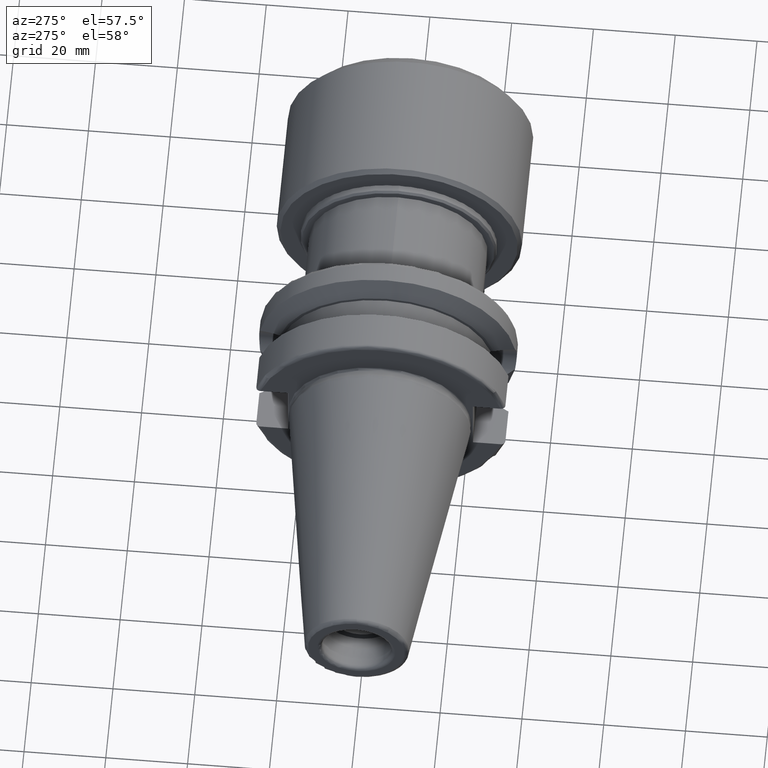
[diagram: clean part render]
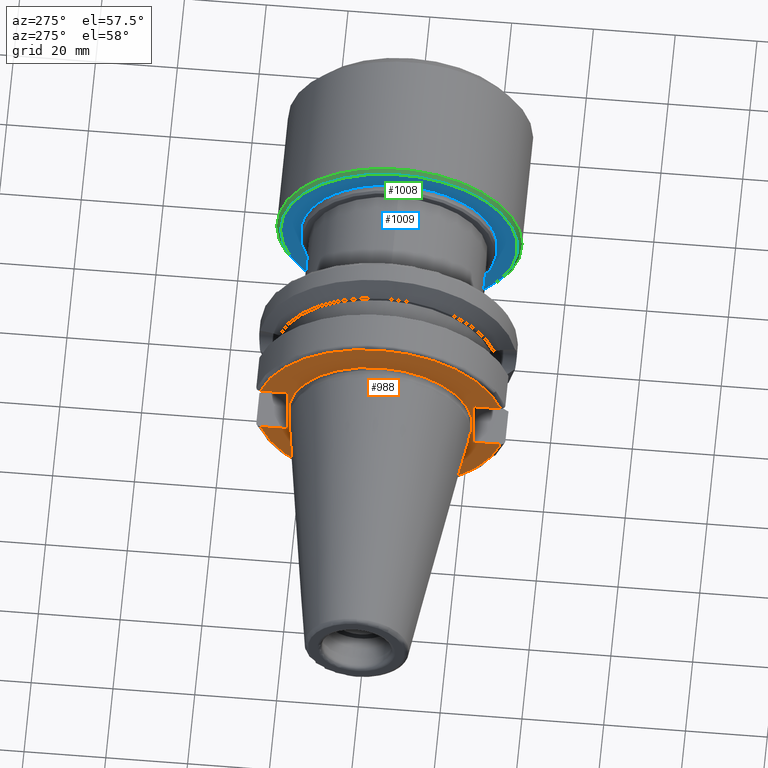
[diagram: same view with three faces highlighted in distinct colors, each labeled with its STEP entity id]
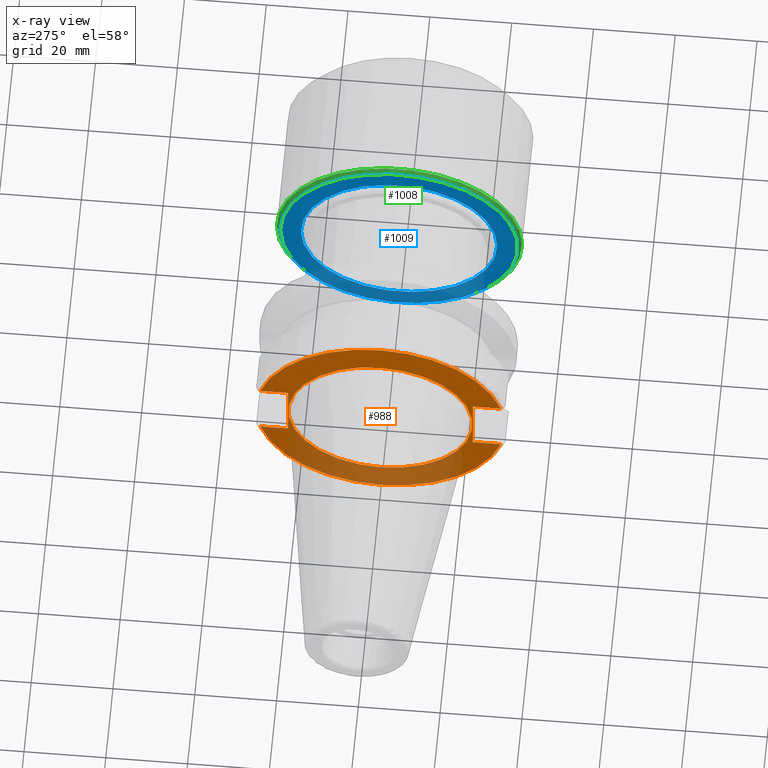
[diagram: x-ray of the same camera — body ghosted, the three highlighted faces saturated]
A machine part, auxiliary view with three faces highlighted in distinct colors.
The next image is the same camera in x-ray (body ghosted, the three faces saturated) — at least one of them is partly hidden behind the body in this view.
Their STEP definitions:

[orange] entity #988 — the highlighted planar face has unit normal (-1, 0, 0).
#66=FACE_BOUND('',#215,.T.);
#85=PLANE('',#1170);
#149=FACE_OUTER_BOUND('',#214,.T.);
#214=EDGE_LOOP('',(#844,#845,#846,#847,#848,#849,#850,#851));
#215=EDGE_LOOP('',(#852));
#259=LINE('',#1692,#311);
#263=LINE('',#1700,#315);
#266=LINE('',#1720,#318);
#277=LINE('',#1820,#329);
#280=LINE('',#1841,#332);
#282=LINE('',#1844,#334);
#311=VECTOR('',#1324,10.);
#315=VECTOR('',#1330,10.);
#318=VECTOR('',#1335,10.);
#329=VECTOR('',#1390,10.);
#332=VECTOR('',#1395,10.);
#334=VECTOR('',#1399,10.);
#380=CIRCLE('',#1147,30.5);
#392=CIRCLE('',#1169,22.5);
#393=CIRCLE('',#1171,30.5);
#454=VERTEX_POINT('',#1680);
#455=VERTEX_POINT('',#1691);
#457=VERTEX_POINT('',#1697);
#458=VERTEX_POINT('',#1699);
#473=VERTEX_POINT('',#1780);
#480=VERTEX_POINT('',#1817);
#481=VERTEX_POINT('',#1819);
#485=VERTEX_POINT('',#1840);
#493=VERTEX_POINT('',#1870);
#559=EDGE_CURVE('',#455,#454,#259,.T.);
#563=EDGE_CURVE('',#458,#457,#263,.T.);
#568=EDGE_CURVE('',#457,#455,#266,.T.);
#588=EDGE_CURVE('',#458,#473,#380,.T.);
#598=EDGE_CURVE('',#481,#480,#277,.T.);
#603=EDGE_CURVE('',#485,#473,#280,.T.);
#605=EDGE_CURVE('',#480,#485,#282,.T.);
#619=EDGE_CURVE('',#493,#493,#392,.T.);
#620=EDGE_CURVE('',#481,#454,#393,.T.);
#844=ORIENTED_EDGE('',*,*,#559,.T.);
#845=ORIENTED_EDGE('',*,*,#620,.F.);
#846=ORIENTED_EDGE('',*,*,#598,.T.);
#847=ORIENTED_EDGE('',*,*,#605,.T.);
#848=ORIENTED_EDGE('',*,*,#603,.T.);
#849=ORIENTED_EDGE('',*,*,#588,.F.);
#850=ORIENTED_EDGE('',*,*,#563,.T.);
#851=ORIENTED_EDGE('',*,*,#568,.T.);
#852=ORIENTED_EDGE('',*,*,#619,.T.);
#988=ADVANCED_FACE('',(#149,#66),#85,.T.);
#1147=AXIS2_PLACEMENT_3D('',#1781,#1377,#1378);
#1169=AXIS2_PLACEMENT_3D('',#1872,#1435,#1436);
#1170=AXIS2_PLACEMENT_3D('',#1873,#1437,#1438);
#1171=AXIS2_PLACEMENT_3D('',#1874,#1439,#1440);
#1324=DIRECTION('',(0.,-1.,0.));
#1330=DIRECTION('',(0.,1.,0.));
#1335=DIRECTION('',(0.,0.,1.));
#1377=DIRECTION('center_axis',(1.,0.,0.));
#1378=DIRECTION('ref_axis',(0.,0.,-1.));
#1390=DIRECTION('',(0.,-1.,0.));
#1395=DIRECTION('',(0.,1.,0.));
#1399=DIRECTION('',(0.,0.,-1.));
#1435=DIRECTION('center_axis',(1.,0.,0.));
#1436=DIRECTION('ref_axis',(0.,0.,-1.));
#1437=DIRECTION('center_axis',(-1.,0.,0.));
#1438=DIRECTION('ref_axis',(0.,0.,1.));
#1439=DIRECTION('center_axis',(1.,0.,0.));
#1440=DIRECTION('ref_axis',(0.,0.,-1.));
#1680=CARTESIAN_POINT('',(1.99999999999999,-29.4184890842477,8.05));
#1691=CARTESIAN_POINT('',(1.99999999999999,-22.6,8.05));
#1692=CARTESIAN_POINT('',(1.99999999999999,3.95,8.05));
#1697=CARTESIAN_POINT('',(1.99999999999999,-22.6,-8.05));
#1699=CARTESIAN_POINT('',(1.99999999999999,-29.4184890842477,-8.05));
#1700=CARTESIAN_POINT('',(1.99999999999999,3.95,-8.05));
#1720=CARTESIAN_POINT('',(1.99999999999999,-22.6,0.));
#1780=CARTESIAN_POINT('',(1.99999999999999,29.4184890842477,-8.05));
#1781=CARTESIAN_POINT('Origin',(1.99999999999999,0.,0.));
#1817=CARTESIAN_POINT('',(1.99999999999999,22.6,8.05));
#1819=CARTESIAN_POINT('',(1.99999999999999,29.4184890842477,8.05));
#1820=CARTESIAN_POINT('',(1.99999999999999,26.55,8.05));
#1840=CARTESIAN_POINT('',(1.99999999999999,22.6,-8.05));
#1841=CARTESIAN_POINT('',(1.99999999999999,26.55,-8.05));
#1844=CARTESIAN_POINT('',(1.99999999999999,22.6,0.));
#1870=CARTESIAN_POINT('',(2.,-2.75545529808154E-15,22.5));
#1872=CARTESIAN_POINT('Origin',(2.,0.,0.));
#1873=CARTESIAN_POINT('Origin',(1.99999999999999,30.5,0.));
#1874=CARTESIAN_POINT('Origin',(1.99999999999999,0.,0.));

[blue] entity #1009 — the highlighted planar face has unit normal (-1, 0, 0).
#71=FACE_BOUND('',#241,.T.);
#92=PLANE('',#1216);
#170=FACE_OUTER_BOUND('',#240,.T.);
#240=EDGE_LOOP('',(#934));
#241=EDGE_LOOP('',(#935));
#410=CIRCLE('',#1205,24.);
#416=CIRCLE('',#1215,29.);
#503=VERTEX_POINT('',#1921);
#509=VERTEX_POINT('',#1940);
#642=EDGE_CURVE('',#503,#503,#410,.T.);
#651=EDGE_CURVE('',#509,#509,#416,.T.);
#934=ORIENTED_EDGE('',*,*,#651,.F.);
#935=ORIENTED_EDGE('',*,*,#642,.T.);
#1009=ADVANCED_FACE('',(#170,#71),#92,.T.);
#1205=AXIS2_PLACEMENT_3D('',#1923,#1512,#1513);
#1215=AXIS2_PLACEMENT_3D('',#1942,#1535,#1536);
#1216=AXIS2_PLACEMENT_3D('',#1943,#1537,#1538);
#1512=DIRECTION('center_axis',(1.,0.,0.));
#1513=DIRECTION('ref_axis',(0.,1.,0.));
#1535=DIRECTION('center_axis',(1.,0.,0.));
#1536=DIRECTION('ref_axis',(0.,-1.,0.));
#1537=DIRECTION('center_axis',(-1.,0.,0.));
#1538=DIRECTION('ref_axis',(0.,0.,1.));
#1921=CARTESIAN_POINT('',(0.,-24.,2.93915231795365E-15));
#1923=CARTESIAN_POINT('Origin',(0.,0.,0.));
#1940=CARTESIAN_POINT('',(0.,29.,3.55147571752732E-15));
#1942=CARTESIAN_POINT('Origin',(0.,0.,0.));
#1943=CARTESIAN_POINT('Origin',(0.,30.,0.));

[green] entity #1008 — the highlighted conical surface has half-angle 45 deg.
#169=FACE_OUTER_BOUND('',#239,.T.);
#239=EDGE_LOOP('',(#929,#930,#931,#932,#933));
#293=LINE('',#1941,#345);
#345=VECTOR('',#1534,29.5);
#414=CIRCLE('',#1211,30.);
#415=CIRCLE('',#1212,30.);
#416=CIRCLE('',#1215,29.);
#507=VERTEX_POINT('',#1933);
#508=VERTEX_POINT('',#1935);
#509=VERTEX_POINT('',#1940);
#648=EDGE_CURVE('',#508,#507,#414,.T.);
#649=EDGE_CURVE('',#507,#508,#415,.T.);
#650=EDGE_CURVE('',#508,#509,#293,.T.);
#651=EDGE_CURVE('',#509,#509,#416,.T.);
#929=ORIENTED_EDGE('',*,*,#648,.T.);
#930=ORIENTED_EDGE('',*,*,#649,.T.);
#931=ORIENTED_EDGE('',*,*,#650,.T.);
#932=ORIENTED_EDGE('',*,*,#651,.T.);
#933=ORIENTED_EDGE('',*,*,#650,.F.);
#949=CONICAL_SURFACE('',#1214,29.5,0.785398163397448);
#1008=ADVANCED_FACE('',(#169),#949,.T.);
#1211=AXIS2_PLACEMENT_3D('',#1936,#1526,#1527);
#1212=AXIS2_PLACEMENT_3D('',#1937,#1528,#1529);
#1214=AXIS2_PLACEMENT_3D('',#1939,#1532,#1533);
#1215=AXIS2_PLACEMENT_3D('',#1942,#1535,#1536);
#1526=DIRECTION('center_axis',(-1.,0.,0.));
#1527=DIRECTION('ref_axis',(0.,-1.,0.));
#1528=DIRECTION('center_axis',(-1.,0.,0.));
#1529=DIRECTION('ref_axis',(0.,-1.,0.));
#1532=DIRECTION('center_axis',(1.,0.,0.));
#1533=DIRECTION('ref_axis',(0.,-1.,0.));
#1534=DIRECTION('',(-0.707106781186548,-0.707106781186548,-8.65956056235493E-17));
#1535=DIRECTION('center_axis',(1.,0.,0.));
#1536=DIRECTION('ref_axis',(0.,-1.,0.));
#1933=CARTESIAN_POINT('',(1.,-30.,-3.67394039744206E-15));
#1935=CARTESIAN_POINT('',(1.,30.,-3.67394039744206E-15));
#1936=CARTESIAN_POINT('Origin',(1.,0.,0.));
#1937=CARTESIAN_POINT('Origin',(1.,0.,0.));
#1939=CARTESIAN_POINT('Origin',(0.5,0.,0.));
#1940=CARTESIAN_POINT('',(0.,29.,3.55147571752732E-15));
#1941=CARTESIAN_POINT('',(0.5,29.5,3.61270805748469E-15));
#1942=CARTESIAN_POINT('Origin',(0.,0.,0.));